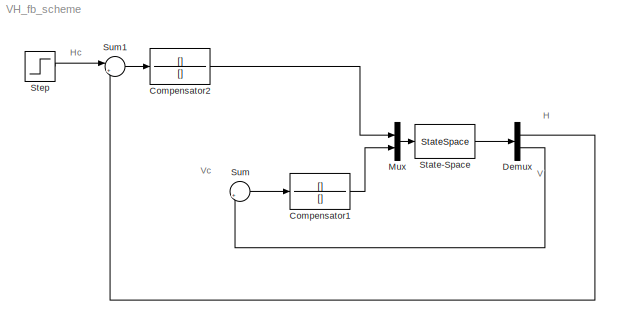
MODEL VH_fb_scheme
KIND model
CONFIG AbsTol = auto
CONFIG FixedStep = auto
CONFIG MaxStep = auto
CONFIG MinStep = auto
CONFIG RelTol = 1e-3
CONFIG Solver = ode45
CONFIG SolverMode = Auto
CONFIG StartTime = 0.0
CONFIG StopTime = 10.0
BLOCK [TransferFcn] Compensator1
  Denominator = []
  Numerator = []
BLOCK [TransferFcn] Compensator2
  Denominator = []
  Numerator = []
BLOCK [Demux] Demux
  Outputs = 2
  Ports = [1, 2]
BLOCK [Mux] Mux
  DisplayOption = bar
  Inputs = 2
  Ports = [2, 1]
BLOCK [StateSpace] State-Space
BLOCK [Step] Step
  SampleTime = 0
BLOCK [Sum] Sum
  IconShape = round
  InputSameDT = off
  Inputs = |++
  OutDataTypeMode = Inherit via internal rule
  Ports = [2, 1]
BLOCK [Sum] Sum1
  IconShape = round
  InputSameDT = off
  Inputs = |++
  OutDataTypeMode = Inherit via internal rule
  Ports = [2, 1]
ANNOTATION (root): H
ANNOTATION (root): Hc
ANNOTATION (root): V
ANNOTATION (root): Vc
LINE Compensator1:1 -> Mux:2
LINE Compensator2:1 -> Mux:1
LINE Demux:1 -> Sum1:2
LINE Demux:2 -> Sum:2
LINE Mux:1 -> State-Space:1
LINE State-Space:1 -> Demux:1
LINE Step:1 -> Sum1:1
LINE Sum1:1 -> Compensator2:1
LINE Sum:1 -> Compensator1:1
